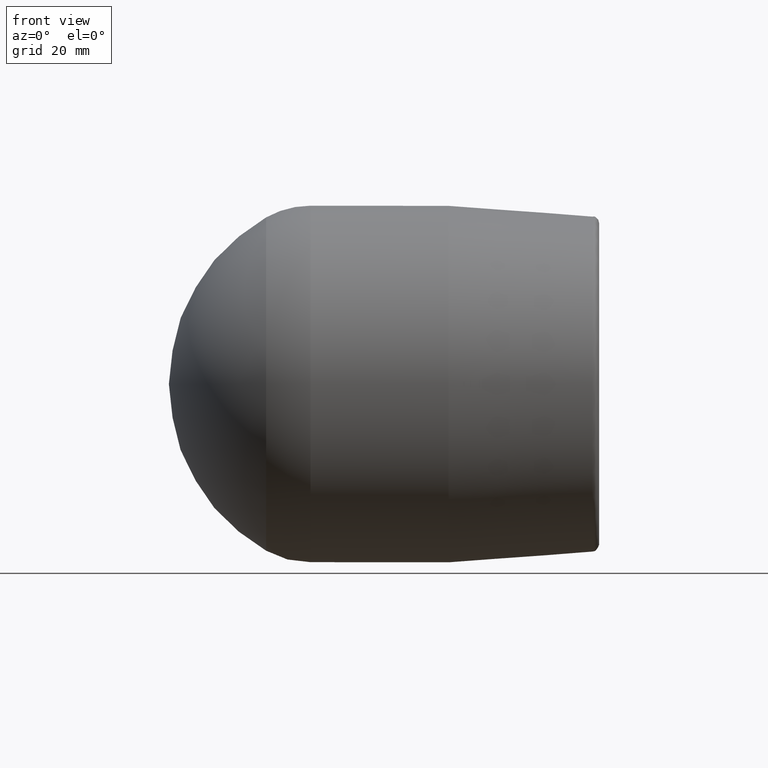
[diagram: clean part render]
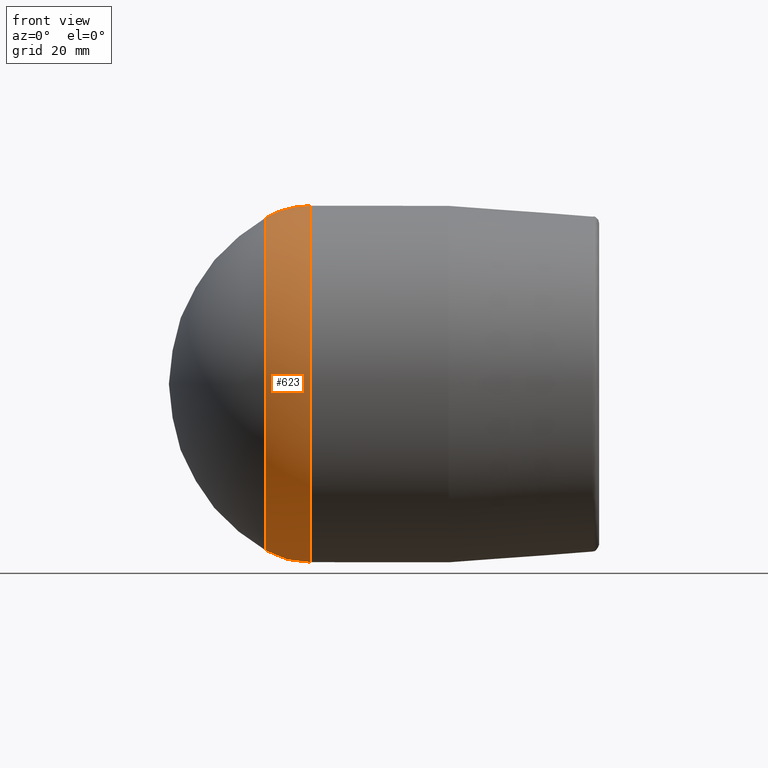
[diagram: same view with one face highlighted and labeled with its STEP entity id]
A machine part, front view. The second image highlights one B-rep face of the part: STEP entity #623.
In plain terms, the highlighted face is a freeform B-spline surface patch.
Its self-contained STEP definition (entity closure, byte-faithful):
#15=(
BOUNDED_CURVE()
B_SPLINE_CURVE(2,(#1242,#1243,#1244),.UNSPECIFIED.,.F.,.F.)
B_SPLINE_CURVE_WITH_KNOTS((3,3),(-1.29036698479207E-17,0.514647429942175),
 .UNSPECIFIED.)
CURVE()
GEOMETRIC_REPRESENTATION_ITEM()
RATIONAL_B_SPLINE_CURVE((1.,0.967074537262635,1.))
REPRESENTATION_ITEM('')
);
#16=(
BOUNDED_SURFACE()
B_SPLINE_SURFACE(2,2,((#1214,#1215,#1216,#1217,#1218,#1219,#1220,#1221,
#1222),(#1223,#1224,#1225,#1226,#1227,#1228,#1229,#1230,#1231),(#1232,#1233,
#1234,#1235,#1236,#1237,#1238,#1239,#1240)),.UNSPECIFIED.,.F.,.T.,.F.)
B_SPLINE_SURFACE_WITH_KNOTS((3,3),(3,2,2,2,3),(-0.514647429942175,1.29036698479207E-17),
(-3.14159265358979,-1.5707963267949,0.,1.5707963267949,3.14159265358979),
 .UNSPECIFIED.)
GEOMETRIC_REPRESENTATION_ITEM()
RATIONAL_B_SPLINE_SURFACE(((1.,0.707106781186548,1.,0.707106781186548,1.,
0.707106781186548,1.,0.707106781186548,1.),(0.967074537262635,0.683824963211252,
0.967074537262635,0.683824963211252,0.967074537262635,0.683824963211252,
0.967074537262635,0.683824963211252,0.967074537262635),(1.,0.707106781186548,
1.,0.707106781186548,1.,0.707106781186548,1.,0.707106781186548,1.)))
REPRESENTATION_ITEM('')
SURFACE()
);
#149=FACE_OUTER_BOUND('',#213,.T.);
#213=EDGE_LOOP('',(#538,#539,#540,#541,#542,#543));
#258=CIRCLE('',#703,34.);
#259=CIRCLE('',#704,34.);
#264=CIRCLE('',#713,31.7720207253886);
#265=CIRCLE('',#714,31.7720207253886);
#315=VERTEX_POINT('',#1198);
#316=VERTEX_POINT('',#1199);
#321=VERTEX_POINT('',#1241);
#322=VERTEX_POINT('',#1245);
#392=EDGE_CURVE('',#315,#316,#258,.T.);
#393=EDGE_CURVE('',#316,#315,#259,.T.);
#398=EDGE_CURVE('',#316,#321,#15,.T.);
#399=EDGE_CURVE('',#321,#322,#264,.T.);
#400=EDGE_CURVE('',#322,#321,#265,.T.);
#538=ORIENTED_EDGE('',*,*,#392,.F.);
#539=ORIENTED_EDGE('',*,*,#393,.F.);
#540=ORIENTED_EDGE('',*,*,#398,.T.);
#541=ORIENTED_EDGE('',*,*,#399,.T.);
#542=ORIENTED_EDGE('',*,*,#400,.T.);
#543=ORIENTED_EDGE('',*,*,#398,.F.);
#623=ADVANCED_FACE('',(#149),#16,.F.);
#703=AXIS2_PLACEMENT_3D('',#1200,#889,#890);
#704=AXIS2_PLACEMENT_3D('',#1201,#891,#892);
#713=AXIS2_PLACEMENT_3D('',#1246,#909,#910);
#714=AXIS2_PLACEMENT_3D('',#1247,#911,#912);
#889=DIRECTION('center_axis',(1.,-6.52773886424224E-18,0.));
#890=DIRECTION('ref_axis',(0.,0.,-1.));
#891=DIRECTION('center_axis',(1.,-6.52773886424224E-18,0.));
#892=DIRECTION('ref_axis',(0.,0.,-1.));
#909=DIRECTION('center_axis',(1.,-6.52773886424224E-18,0.));
#910=DIRECTION('ref_axis',(0.,0.,-1.));
#911=DIRECTION('center_axis',(1.,-6.52773886424224E-18,0.));
#912=DIRECTION('ref_axis',(0.,0.,-1.));
#1198=CARTESIAN_POINT('',(-55.,34.,0.));
#1199=CARTESIAN_POINT('',(-55.,3.59025637533323E-16,34.));
#1200=CARTESIAN_POINT('Origin',(-55.,3.59025637533323E-16,0.));
#1201=CARTESIAN_POINT('Origin',(-55.,3.59025637533323E-16,0.));
#1214=CARTESIAN_POINT('Ctrl Pts',(-63.4663212435233,4.1429157175183E-16,
31.7720207253886));
#1215=CARTESIAN_POINT('Ctrl Pts',(-63.4663212435233,-31.7720207253886,31.7720207253886));
#1216=CARTESIAN_POINT('Ctrl Pts',(-63.4663212435233,-31.7720207253886,0.));
#1217=CARTESIAN_POINT('Ctrl Pts',(-63.4663212435233,-31.7720207253886,-31.7720207253886));
#1218=CARTESIAN_POINT('Ctrl Pts',(-63.4663212435233,4.1429157175183E-16,
-31.7720207253886));
#1219=CARTESIAN_POINT('Ctrl Pts',(-63.4663212435233,31.7720207253886,-31.7720207253886));
#1220=CARTESIAN_POINT('Ctrl Pts',(-63.4663212435233,31.7720207253886,0.));
#1221=CARTESIAN_POINT('Ctrl Pts',(-63.4663212435233,31.7720207253886,31.7720207253886));
#1222=CARTESIAN_POINT('Ctrl Pts',(-63.4663212435233,4.1429157175183E-16,
31.7720207253886));
#1223=CARTESIAN_POINT('Ctrl Pts',(-59.5263157894737,3.88572245024104E-16,
34.));
#1224=CARTESIAN_POINT('Ctrl Pts',(-59.5263157894737,-34.,34.));
#1225=CARTESIAN_POINT('Ctrl Pts',(-59.5263157894737,-34.,0.));
#1226=CARTESIAN_POINT('Ctrl Pts',(-59.5263157894737,-34.,-34.));
#1227=CARTESIAN_POINT('Ctrl Pts',(-59.5263157894737,3.88572245024104E-16,
-34.));
#1228=CARTESIAN_POINT('Ctrl Pts',(-59.5263157894737,34.,-34.));
#1229=CARTESIAN_POINT('Ctrl Pts',(-59.5263157894737,34.,0.));
#1230=CARTESIAN_POINT('Ctrl Pts',(-59.5263157894737,34.,34.));
#1231=CARTESIAN_POINT('Ctrl Pts',(-59.5263157894737,3.88572245024104E-16,
34.));
#1232=CARTESIAN_POINT('Ctrl Pts',(-55.,3.59025637533323E-16,34.));
#1233=CARTESIAN_POINT('Ctrl Pts',(-55.,-34.,34.));
#1234=CARTESIAN_POINT('Ctrl Pts',(-55.,-34.,0.));
#1235=CARTESIAN_POINT('Ctrl Pts',(-55.,-34.,-34.));
#1236=CARTESIAN_POINT('Ctrl Pts',(-55.,3.59025637533323E-16,-34.));
#1237=CARTESIAN_POINT('Ctrl Pts',(-55.,34.,-34.));
#1238=CARTESIAN_POINT('Ctrl Pts',(-55.,34.,0.));
#1239=CARTESIAN_POINT('Ctrl Pts',(-55.,34.,34.));
#1240=CARTESIAN_POINT('Ctrl Pts',(-55.,3.59025637533323E-16,34.));
#1241=CARTESIAN_POINT('',(-63.4663212435233,4.1429157175183E-16,31.7720207253886));
#1242=CARTESIAN_POINT('Ctrl Pts',(-55.,3.59025637533323E-16,34.));
#1243=CARTESIAN_POINT('Ctrl Pts',(-59.5263157894737,3.88572245024104E-16,
34.));
#1244=CARTESIAN_POINT('Ctrl Pts',(-63.4663212435233,4.1429157175183E-16,
31.7720207253886));
#1245=CARTESIAN_POINT('',(-63.4663212435233,31.7720207253886,0.));
#1246=CARTESIAN_POINT('Origin',(-63.4663212435233,4.1429157175183E-16,0.));
#1247=CARTESIAN_POINT('Origin',(-63.4663212435233,4.1429157175183E-16,0.));